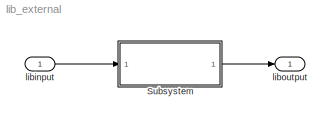
MODEL lib_external
KIND model
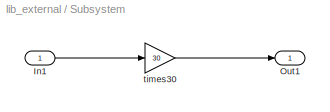
BLOCK [SubSystem] Subsystem
  Ports = [1, 1]
  RequestExecContextInheritance = off
  SID = 2
  Variant = off
BLOCK [Inport] Subsystem/In1
  IconDisplay = Port number
  SID = 3
BLOCK [Outport] Subsystem/Out1
  IconDisplay = Port number
  SID = 5
BLOCK [Gain] Subsystem/times30
  Gain = 30
  OutDataTypeStr = Inherit: Inherit via internal rule
  ParamDataTypeStr = Inherit: Inherit via internal rule
  SID = 4
  SaturateOnIntegerOverflow = off
BLOCK [Inport] libinput
  IconDisplay = Port number
  OutDataTypeStr = double
  PortDimensions = 1
  SID = 1
  SampleTime = 0
  SamplingMode = Sample based
  SignalType = real
BLOCK [Outport] liboutput
  IconDisplay = Port number
  OutDataTypeStr = double
  PortDimensions = 1
  SID = 6
  SampleTime = 0
  SamplingMode = Sample based
  SignalType = real
LINE Subsystem/In1:1 -> Subsystem/times30:1
LINE Subsystem/times30:1 -> Subsystem/Out1:1
LINE Subsystem:1 -> liboutput:1
LINE libinput:1 -> Subsystem:1
